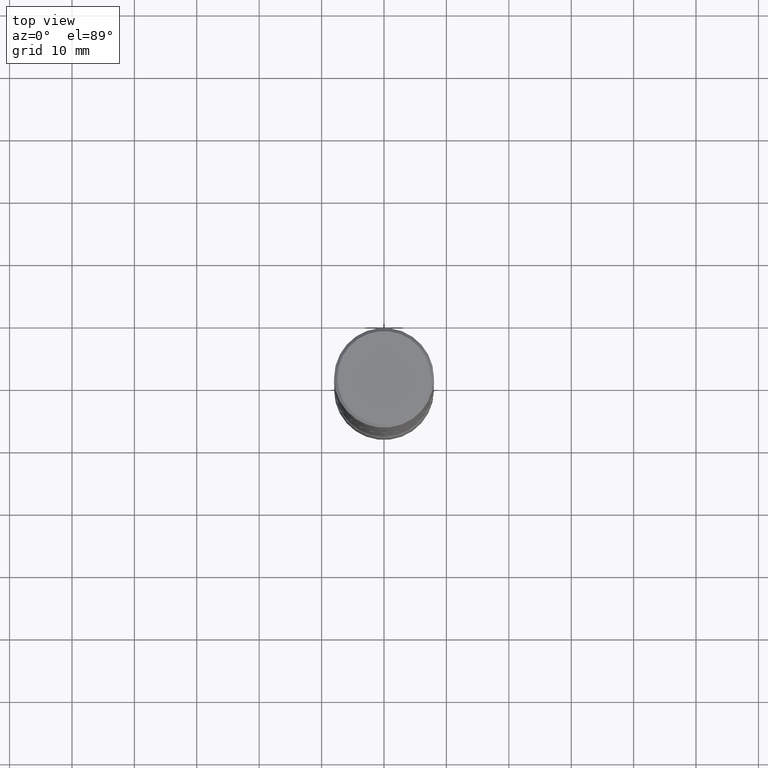
[diagram: clean part render]
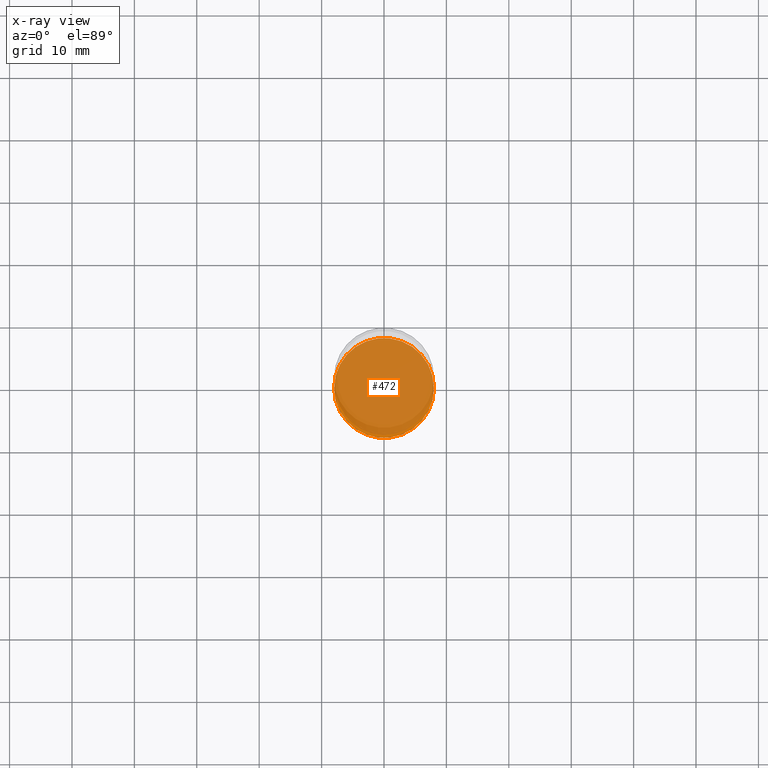
[diagram: x-ray — body ghosted, one internal face saturated and labeled with its STEP entity id]
A machine part, top view, then the same camera in x-ray: the body is ghosted and one INTERNAL B-rep face — a face not visible from any outside direction — is saturated and labeled: STEP entity #472.
In plain terms, the highlighted planar face has unit normal (0, -0, -1).
Its self-contained STEP definition (entity closure, byte-faithful):
#15 = PLANE ( 'NONE',  #544 ) ;
#16 = CARTESIAN_POINT ( 'NONE',  ( 9.146542428893650504E-29, -1.305883850354113594E-14, -3.740200000000000635 ) ) ;
#18 = EDGE_CURVE ( 'NONE', #405, #267, #196, .T. ) ;
#25 = EDGE_LOOP ( 'NONE', ( #156, #88 ) ) ;
#44 = CARTESIAN_POINT ( 'NONE',  ( 0.3149500000000002298, -1.525812259887842581E-14, -3.740200000000000635 ) ) ;
#60 = DIRECTION ( 'NONE',  ( -2.445468806185136597E-29, 3.491481338843145583E-15, 1.000000000000000000 ) ) ;
#65 = DIRECTION ( 'NONE',  ( 1.000000000000000000, -6.982962677686264344E-15, 0.000000000000000000 ) ) ;
#69 = EDGE_CURVE ( 'NONE', #267, #405, #325, .T. ) ;
#88 = ORIENTED_EDGE ( 'NONE', *, *, #69, .T. ) ;
#142 = AXIS2_PLACEMENT_3D ( 'NONE', #538, #403, #277 ) ;
#156 = ORIENTED_EDGE ( 'NONE', *, *, #18, .T. ) ;
#163 = AXIS2_PLACEMENT_3D ( 'NONE', #16, #60, #65 ) ;
#196 = CIRCLE ( 'NONE', #142, 0.3149500000000002298 ) ;
#267 = VERTEX_POINT ( 'NONE', #509 ) ;
#277 = DIRECTION ( 'NONE',  ( 1.000000000000000000, -6.982962677686264344E-15, 0.000000000000000000 ) ) ;
#314 = DIRECTION ( 'NONE',  ( -1.000000000000000000, 6.982962677686265922E-15, -4.876176775795935793E-29 ) ) ;
#325 = CIRCLE ( 'NONE', #163, 0.3149500000000002298 ) ;
#396 = CARTESIAN_POINT ( 'NONE',  ( 4.615694768568605168E-29, -1.954727023296045315E-14, -3.740200000000000635 ) ) ;
#403 = DIRECTION ( 'NONE',  ( -2.445468806185136597E-29, 3.491481338843145583E-15, 1.000000000000000000 ) ) ;
#405 = VERTEX_POINT ( 'NONE', #44 ) ;
#449 = FACE_OUTER_BOUND ( 'NONE', #25, .T. ) ;
#472 = ADVANCED_FACE ( 'NONE', ( #449 ), #15, .F. ) ;
#509 = CARTESIAN_POINT ( 'NONE',  ( -0.3149500000000002298, -1.205819056968376648E-14, -3.740200000000000635 ) ) ;
#528 = DIRECTION ( 'NONE',  ( 2.438088387897960049E-29, -3.491481338843145188E-15, -1.000000000000000000 ) ) ;
#538 = CARTESIAN_POINT ( 'NONE',  ( 9.146542428893650504E-29, -1.305883850354113594E-14, -3.740200000000000635 ) ) ;
#544 = AXIS2_PLACEMENT_3D ( 'NONE', #396, #528, #314 ) ;